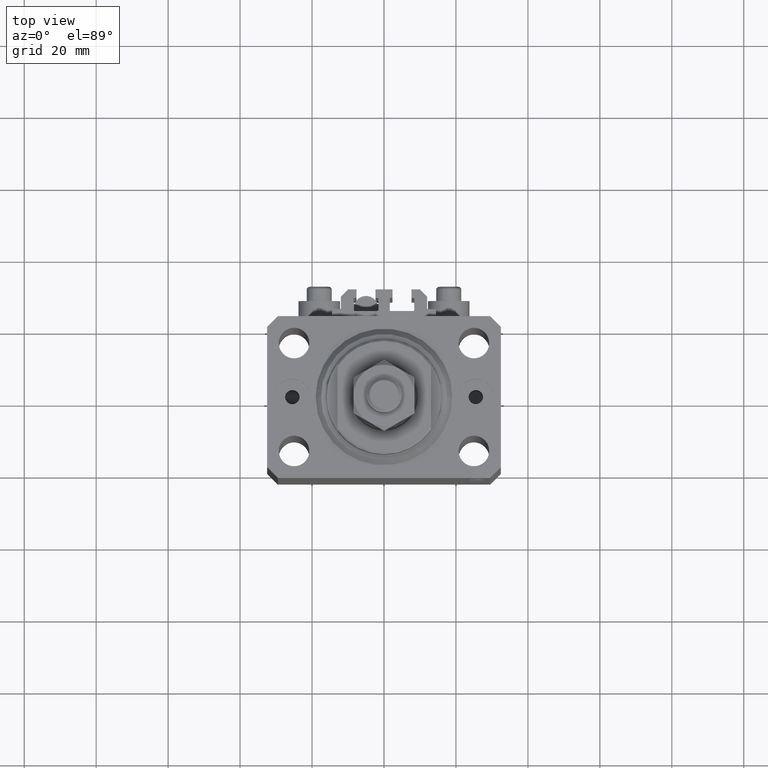
[diagram: clean part render]
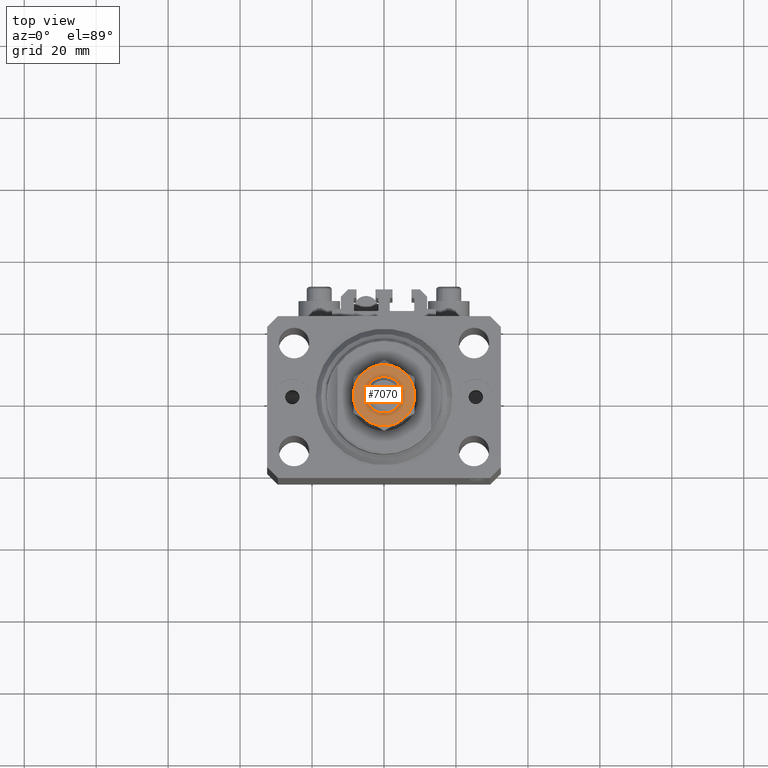
[diagram: same view with one face highlighted and labeled with its STEP entity id]
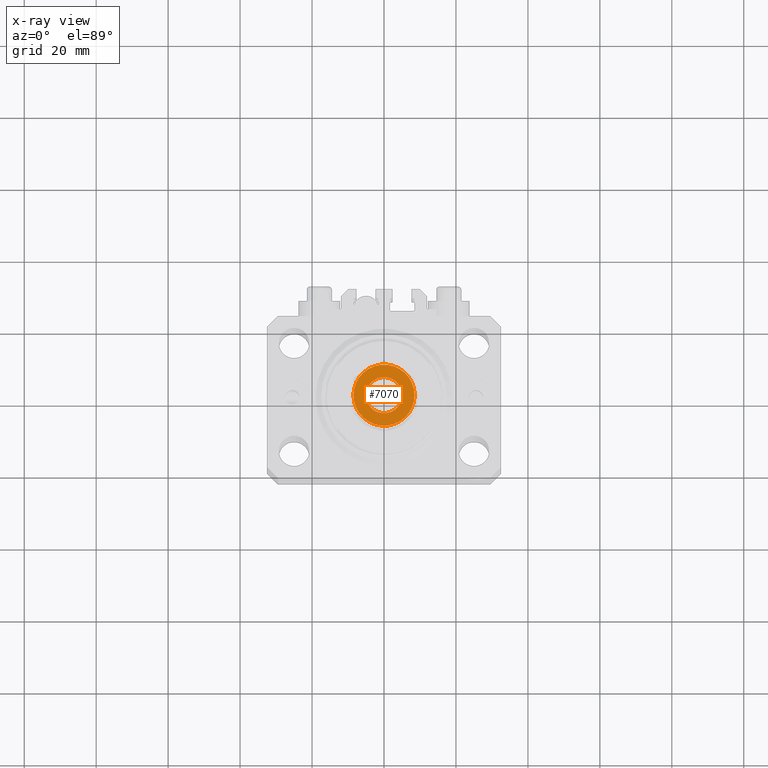
[diagram: x-ray of the same camera — body ghosted, the highlighted face saturated]
A machine part, top view. The second image highlights one B-rep face of the part: STEP entity #7070.
The next image is the same camera in x-ray: the body ghosted, the highlighted face saturated — about 0% of this face is hidden behind the body in this view.
In plain terms, the highlighted planar face has unit normal (0, 0, 1).
Its self-contained STEP definition (entity closure, byte-faithful):
#850 = VERTEX_POINT ( 'NONE', #24291 ) ;
#1439 = CARTESIAN_POINT ( 'NONE',  ( -4.250000000000000000, 7.361215932167723963, 14.00000000000000000 ) ) ;
#1884 = CIRCLE ( 'NONE', #16295, 8.499999999999996447 ) ;
#1945 = DIRECTION ( 'NONE',  ( 1.000000000000000000, 0.000000000000000000, 0.000000000000000000 ) ) ;
#3118 = AXIS2_PLACEMENT_3D ( 'NONE', #29648, #7328, #11079 ) ;
#3122 = AXIS2_PLACEMENT_3D ( 'NONE', #19027, #48630, #6779 ) ;
#3370 = DIRECTION ( 'NONE',  ( 0.000000000000000000, -0.000000000000000000, 1.000000000000000000 ) ) ;
#3530 = CARTESIAN_POINT ( 'NONE',  ( 0.000000000000000000, 0.000000000000000000, 14.00000000000000000 ) ) ;
#4782 = CARTESIAN_POINT ( 'NONE',  ( -8.499999999999996447, 0.000000000000000000, 14.00000000000000000 ) ) ;
#6726 = VERTEX_POINT ( 'NONE', #13951 ) ;
#6779 = DIRECTION ( 'NONE',  ( 1.000000000000000000, 0.000000000000000000, 0.000000000000000000 ) ) ;
#7070 = ADVANCED_FACE ( 'NONE', ( #17398, #13394 ), #48223, .T. ) ;
#7328 = DIRECTION ( 'NONE',  ( 0.000000000000000000, -0.000000000000000000, 1.000000000000000000 ) ) ;
#9294 = DIRECTION ( 'NONE',  ( 1.000000000000000000, 0.000000000000000000, 0.000000000000000000 ) ) ;
#9543 = CARTESIAN_POINT ( 'NONE',  ( 0.000000000000000000, 0.000000000000000000, 14.00000000000000000 ) ) ;
#10333 = CIRCLE ( 'NONE', #3122, 5.000000000000000000 ) ;
#10373 = DIRECTION ( 'NONE',  ( 0.000000000000000000, -0.000000000000000000, 1.000000000000000000 ) ) ;
#10828 = VERTEX_POINT ( 'NONE', #46123 ) ;
#11079 = DIRECTION ( 'NONE',  ( 1.000000000000000000, 0.000000000000000000, 0.000000000000000000 ) ) ;
#11143 = ORIENTED_EDGE ( 'NONE', *, *, #14704, .T. ) ;
#13394 = FACE_OUTER_BOUND ( 'NONE', #41258, .T. ) ;
#13951 = CARTESIAN_POINT ( 'NONE',  ( 4.250000000000000000, -7.361215932167723963, 14.00000000000000000 ) ) ;
#14402 = CARTESIAN_POINT ( 'NONE',  ( 0.000000000000000000, 0.000000000000000000, 14.00000000000000000 ) ) ;
#14626 = VERTEX_POINT ( 'NONE', #4782 ) ;
#14704 = EDGE_CURVE ( 'NONE', #850, #43880, #1884, .T. ) ;
#14807 = DIRECTION ( 'NONE',  ( 1.000000000000000000, 0.000000000000000000, 0.000000000000000000 ) ) ;
#15434 = AXIS2_PLACEMENT_3D ( 'NONE', #32676, #10373, #48703 ) ;
#16295 = AXIS2_PLACEMENT_3D ( 'NONE', #9543, #29092, #9294 ) ;
#17217 = AXIS2_PLACEMENT_3D ( 'NONE', #38029, #23257, #34774 ) ;
#17398 = FACE_BOUND ( 'NONE', #42988, .T. ) ;
#17555 = AXIS2_PLACEMENT_3D ( 'NONE', #14402, #3370, #34417 ) ;
#19027 = CARTESIAN_POINT ( 'NONE',  ( 0.000000000000000000, 0.000000000000000000, 14.00000000000000000 ) ) ;
#20843 = CIRCLE ( 'NONE', #44068, 8.499999999999996447 ) ;
#21747 = ORIENTED_EDGE ( 'NONE', *, *, #23781, .T. ) ;
#22726 = VERTEX_POINT ( 'NONE', #38286 ) ;
#23257 = DIRECTION ( 'NONE',  ( 0.000000000000000000, 0.000000000000000000, 1.000000000000000000 ) ) ;
#23781 = EDGE_CURVE ( 'NONE', #47514, #850, #34005, .T. ) ;
#24291 = CARTESIAN_POINT ( 'NONE',  ( 4.249999999999999112, 7.361215932167725740, 14.00000000000000000 ) ) ;
#27278 = CIRCLE ( 'NONE', #28906, 5.000000000000000000 ) ;
#27655 = CIRCLE ( 'NONE', #40487, 8.499999999999996447 ) ;
#28840 = ORIENTED_EDGE ( 'NONE', *, *, #39161, .T. ) ;
#28906 = AXIS2_PLACEMENT_3D ( 'NONE', #47560, #33001, #1945 ) ;
#29092 = DIRECTION ( 'NONE',  ( 0.000000000000000000, -0.000000000000000000, 1.000000000000000000 ) ) ;
#29648 = CARTESIAN_POINT ( 'NONE',  ( 0.000000000000000000, 0.000000000000000000, 14.00000000000000000 ) ) ;
#29978 = DIRECTION ( 'NONE',  ( 0.000000000000000000, -0.000000000000000000, 1.000000000000000000 ) ) ;
#30499 = EDGE_CURVE ( 'NONE', #6726, #47514, #27655, .T. ) ;
#30577 = CARTESIAN_POINT ( 'NONE',  ( 8.499999999999996447, 1.502314598737159820E-15, 14.00000000000000000 ) ) ;
#32676 = CARTESIAN_POINT ( 'NONE',  ( 0.000000000000000000, 0.000000000000000000, 14.00000000000000000 ) ) ;
#32749 = CARTESIAN_POINT ( 'NONE',  ( 0.000000000000000000, 0.000000000000000000, 14.00000000000000000 ) ) ;
#33001 = DIRECTION ( 'NONE',  ( -0.000000000000000000, 0.000000000000000000, -1.000000000000000000 ) ) ;
#33531 = CIRCLE ( 'NONE', #17555, 8.499999999999996447 ) ;
#34005 = CIRCLE ( 'NONE', #17217, 8.499999999999996447 ) ;
#34309 = CIRCLE ( 'NONE', #3118, 8.499999999999996447 ) ;
#34417 = DIRECTION ( 'NONE',  ( 1.000000000000000000, 0.000000000000000000, 0.000000000000000000 ) ) ;
#34774 = DIRECTION ( 'NONE',  ( 1.000000000000000000, 0.000000000000000000, 0.000000000000000000 ) ) ;
#34836 = DIRECTION ( 'NONE',  ( 0.000000000000000000, -0.000000000000000000, 1.000000000000000000 ) ) ;
#37145 = ORIENTED_EDGE ( 'NONE', *, *, #42145, .T. ) ;
#38029 = CARTESIAN_POINT ( 'NONE',  ( 0.000000000000000000, 0.000000000000000000, 14.00000000000000000 ) ) ;
#38286 = CARTESIAN_POINT ( 'NONE',  ( 5.000000000000000000, 0.000000000000000000, 13.99999999999999822 ) ) ;
#39161 = EDGE_CURVE ( 'NONE', #49087, #22726, #10333, .T. ) ;
#40487 = AXIS2_PLACEMENT_3D ( 'NONE', #32749, #29978, #44539 ) ;
#40876 = CARTESIAN_POINT ( 'NONE',  ( -5.000000000000000000, 6.123233995736766282E-16, 13.99999999999999822 ) ) ;
#41258 = EDGE_LOOP ( 'NONE', ( #41815, #21747, #11143, #48375, #45378, #37145 ) ) ;
#41815 = ORIENTED_EDGE ( 'NONE', *, *, #30499, .T. ) ;
#41839 = EDGE_CURVE ( 'NONE', #14626, #10828, #33531, .T. ) ;
#42145 = EDGE_CURVE ( 'NONE', #10828, #6726, #34309, .T. ) ;
#42988 = EDGE_LOOP ( 'NONE', ( #44647, #28840 ) ) ;
#43880 = VERTEX_POINT ( 'NONE', #1439 ) ;
#44068 = AXIS2_PLACEMENT_3D ( 'NONE', #3530, #34836, #14807 ) ;
#44539 = DIRECTION ( 'NONE',  ( 1.000000000000000000, 0.000000000000000000, 0.000000000000000000 ) ) ;
#44647 = ORIENTED_EDGE ( 'NONE', *, *, #46387, .T. ) ;
#45378 = ORIENTED_EDGE ( 'NONE', *, *, #41839, .T. ) ;
#45820 = EDGE_CURVE ( 'NONE', #43880, #14626, #20843, .T. ) ;
#46123 = CARTESIAN_POINT ( 'NONE',  ( -4.250000000000000888, -7.361215932167725740, 14.00000000000000000 ) ) ;
#46387 = EDGE_CURVE ( 'NONE', #22726, #49087, #27278, .T. ) ;
#47514 = VERTEX_POINT ( 'NONE', #30577 ) ;
#47560 = CARTESIAN_POINT ( 'NONE',  ( 0.000000000000000000, 0.000000000000000000, 14.00000000000000000 ) ) ;
#48223 = PLANE ( 'NONE',  #15434 ) ;
#48375 = ORIENTED_EDGE ( 'NONE', *, *, #45820, .T. ) ;
#48630 = DIRECTION ( 'NONE',  ( -0.000000000000000000, 0.000000000000000000, -1.000000000000000000 ) ) ;
#48703 = DIRECTION ( 'NONE',  ( 1.000000000000000000, 0.000000000000000000, -0.000000000000000000 ) ) ;
#49087 = VERTEX_POINT ( 'NONE', #40876 ) ;